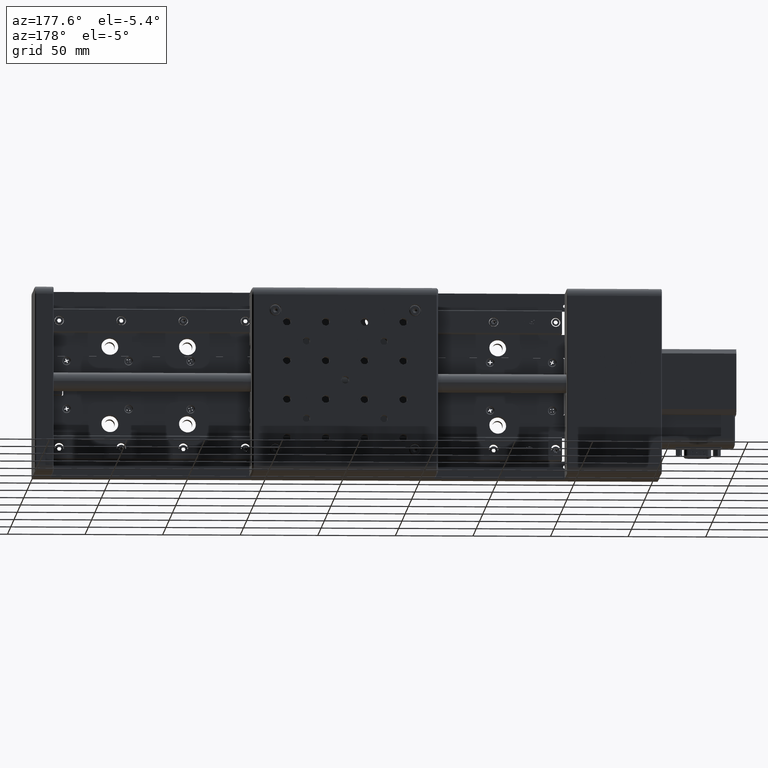
[diagram: clean part render]
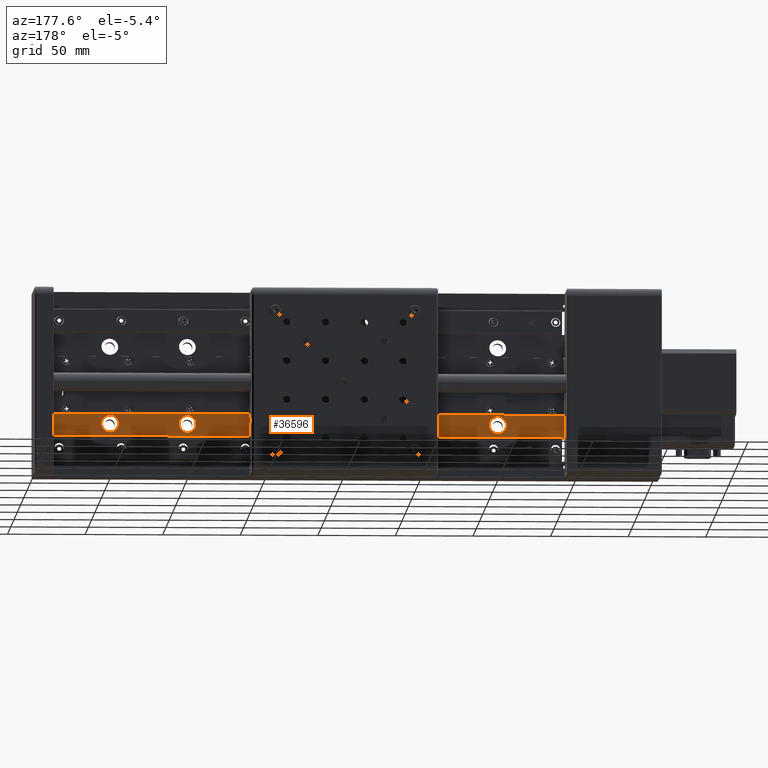
[diagram: same view with one face highlighted and labeled with its STEP entity id]
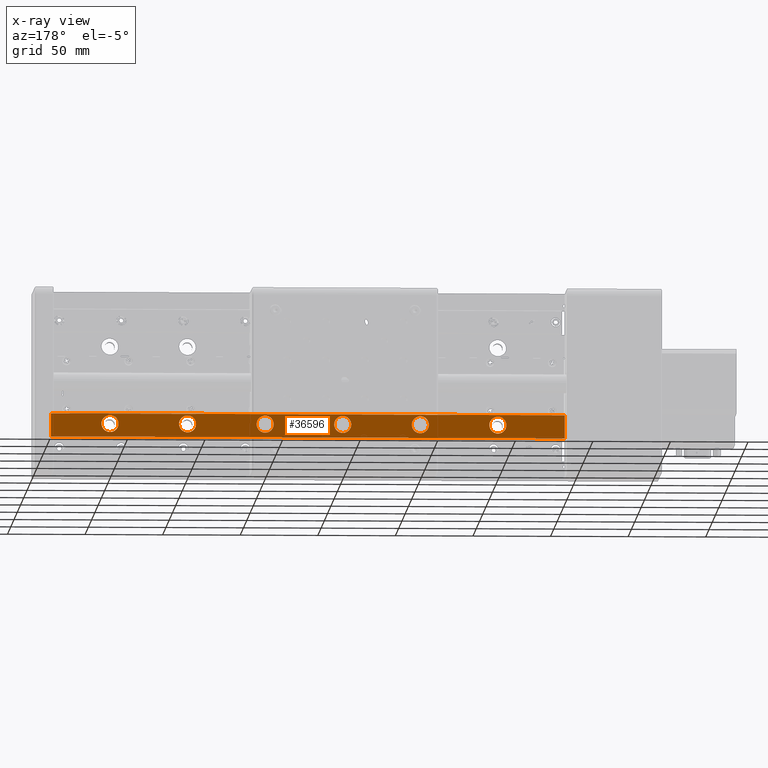
[diagram: x-ray of the same camera — body ghosted, the highlighted face saturated]
A machine part, auxiliary view. The second image highlights one B-rep face of the part: STEP entity #36596.
The next image is the same camera in x-ray: the body ghosted, the highlighted face saturated — about 0% of this face is hidden behind the body in this view.
In plain terms, the highlighted planar face has unit normal (-0, 1, -0).
Its self-contained STEP definition (entity closure, byte-faithful):
#104 = DIRECTION ( 'NONE',  ( -1.000000000000000000, 0.0000000000000000000, -1.009293658750141300E-014 ) ) ;
#224 = CARTESIAN_POINT ( 'NONE',  ( -45.90945278140745200, 14.00000000000170900, -259.4944050297544300 ) ) ;
#250 = CARTESIAN_POINT ( 'NONE',  ( 285.0905472185925200, 14.00000000000170900, -262.4944050297513600 ) ) ;
#325 = DIRECTION ( 'NONE',  ( -1.000000000000000000, 0.0000000000000000000, -1.009293658750141300E-014 ) ) ;
#441 = CARTESIAN_POINT ( 'NONE',  ( 197.0905472185922900, 14.00000000000171200, -232.4944050297521900 ) ) ;
#478 = DIRECTION ( 'NONE',  ( -5.605193857299268300E-045, 1.000000000000000000, -1.224646799147351500E-016 ) ) ;
#498 = CIRCLE ( 'NONE', #4271, 5.500000000000005300 ) ;
#518 = DIRECTION ( 'NONE',  ( 9.159679833264681700E-015, -1.224646799147351500E-016, -1.000000000000000000 ) ) ;
#609 = CARTESIAN_POINT ( 'NONE',  ( 252.5905472185923200, 14.00000000000171200, -232.4944050297516500 ) ) ;
#1304 = CARTESIAN_POINT ( 'NONE',  ( -2.909452781407723300, 14.00000000000171200, -232.4944050297540100 ) ) ;
#2017 = CARTESIAN_POINT ( 'NONE',  ( 102.5905472185922900, 14.00000000000171200, -232.4944050297530400 ) ) ;
#2184 = CARTESIAN_POINT ( 'NONE',  ( 241.5905472185922600, 14.00000000000171200, -232.4944050297517600 ) ) ;
#2326 = CIRCLE ( 'NONE', #34418, 5.500000000000005300 ) ;
#2432 = EDGE_LOOP ( 'NONE', ( #32907, #16328 ) ) ;
#2974 = AXIS2_PLACEMENT_3D ( 'NONE', #1304, #32135, #4456 ) ;
#3001 = ORIENTED_EDGE ( 'NONE', *, *, #8873, .F. ) ;
#3315 = VECTOR ( 'NONE', #30223, 1000.000000000000000 ) ;
#3556 = VERTEX_POINT ( 'NONE', #32783 ) ;
#3711 = ORIENTED_EDGE ( 'NONE', *, *, #29572, .F. ) ;
#3744 = DIRECTION ( 'NONE',  ( -1.000000000000000000, 0.0000000000000000000, -1.009293658750141300E-014 ) ) ;
#4171 = CARTESIAN_POINT ( 'NONE',  ( 285.0905472185921800, 14.00000000000171400, -225.9944050297513600 ) ) ;
#4271 = AXIS2_PLACEMENT_3D ( 'NONE', #4807, #31193, #14687 ) ;
#4456 = DIRECTION ( 'NONE',  ( -1.000000000000000000, 0.0000000000000000000, -1.009293658750141300E-014 ) ) ;
#4807 = CARTESIAN_POINT ( 'NONE',  ( 247.0905472185922600, 14.00000000000171200, -232.4944050297517000 ) ) ;
#6632 = CARTESIAN_POINT ( 'NONE',  ( 202.5905472185922900, 14.00000000000171200, -232.4944050297521300 ) ) ;
#7158 = AXIS2_PLACEMENT_3D ( 'NONE', #10702, #37295, #20858 ) ;
#7555 = EDGE_LOOP ( 'NONE', ( #17137, #41068 ) ) ;
#7582 = EDGE_CURVE ( 'NONE', #11464, #21837, #2326, .T. ) ;
#7644 = CIRCLE ( 'NONE', #15473, 5.500000000000005300 ) ;
#7789 = ORIENTED_EDGE ( 'NONE', *, *, #33727, .F. ) ;
#7881 = CIRCLE ( 'NONE', #24505, 5.500000000000005300 ) ;
#8258 = FACE_BOUND ( 'NONE', #2432, .T. ) ;
#8873 = EDGE_CURVE ( 'NONE', #40105, #11860, #7881, .T. ) ;
#9276 = CARTESIAN_POINT ( 'NONE',  ( 2.590547218592282000, 14.00000000000171200, -232.4944050297539800 ) ) ;
#9477 = CARTESIAN_POINT ( 'NONE',  ( 91.59054721859227800, 14.00000000000171200, -232.4944050297531500 ) ) ;
#9901 = DIRECTION ( 'NONE',  ( -5.605193857299268300E-045, 1.000000000000000000, -1.224646799147351500E-016 ) ) ;
#9948 = AXIS2_PLACEMENT_3D ( 'NONE', #30546, #33880, #40452 ) ;
#10196 = CIRCLE ( 'NONE', #9948, 5.500000000000005300 ) ;
#10250 = CARTESIAN_POINT ( 'NONE',  ( 52.59054721859227800, 14.00000000000171200, -232.4944050297534900 ) ) ;
#10284 = CIRCLE ( 'NONE', #25464, 5.500000000000005300 ) ;
#10392 = LINE ( 'NONE', #4171, #30088 ) ;
#10702 = CARTESIAN_POINT ( 'NONE',  ( 97.09054721859227800, 14.00000000000171200, -232.4944050297531000 ) ) ;
#10846 = CARTESIAN_POINT ( 'NONE',  ( 47.09054721859227000, 14.00000000000171200, -232.4944050297535500 ) ) ;
#11108 = VERTEX_POINT ( 'NONE', #2017 ) ;
#11464 = VERTEX_POINT ( 'NONE', #27227 ) ;
#11705 = VECTOR ( 'NONE', #518, 1000.000000000000000 ) ;
#11860 = VERTEX_POINT ( 'NONE', #9276 ) ;
#11927 = EDGE_CURVE ( 'NONE', #11860, #40105, #32582, .T. ) ;
#12152 = LINE ( 'NONE', #250, #3315 ) ;
#12214 = EDGE_CURVE ( 'NONE', #26525, #20164, #10284, .T. ) ;
#12591 = CARTESIAN_POINT ( 'NONE',  ( -8.409452781407727800, 14.00000000000171200, -232.4944050297540600 ) ) ;
#13468 = FACE_BOUND ( 'NONE', #7555, .T. ) ;
#13783 = ORIENTED_EDGE ( 'NONE', *, *, #13913, .F. ) ;
#13913 = EDGE_CURVE ( 'NONE', #23322, #34408, #10196, .T. ) ;
#13931 = CIRCLE ( 'NONE', #24118, 5.500000000000005300 ) ;
#14241 = EDGE_CURVE ( 'NONE', #3556, #35947, #24693, .T. ) ;
#14687 = DIRECTION ( 'NONE',  ( -1.000000000000000000, 0.0000000000000000000, -1.009293658750141300E-014 ) ) ;
#14964 = AXIS2_PLACEMENT_3D ( 'NONE', #25969, #26104, #42485 ) ;
#15129 = CARTESIAN_POINT ( 'NONE',  ( 97.09054721859227800, 14.00000000000171200, -232.4944050297531000 ) ) ;
#15284 = CARTESIAN_POINT ( 'NONE',  ( 285.0905472185921800, 14.00000000000171400, -225.9944050297513600 ) ) ;
#15473 = AXIS2_PLACEMENT_3D ( 'NONE', #10846, #17530, #40572 ) ;
#15792 = CARTESIAN_POINT ( 'NONE',  ( 152.5905472185922600, 14.00000000000171200, -232.4944050297525800 ) ) ;
#16328 = ORIENTED_EDGE ( 'NONE', *, *, #39812, .F. ) ;
#17137 = ORIENTED_EDGE ( 'NONE', *, *, #34730, .F. ) ;
#17530 = DIRECTION ( 'NONE',  ( -5.605193857299268300E-045, 1.000000000000000000, -1.224646799147351500E-016 ) ) ;
#18771 = VERTEX_POINT ( 'NONE', #10250 ) ;
#19367 = ORIENTED_EDGE ( 'NONE', *, *, #14241, .F. ) ;
#20164 = VERTEX_POINT ( 'NONE', #33433 ) ;
#20463 = CARTESIAN_POINT ( 'NONE',  ( 197.0905472185922900, 14.00000000000171200, -232.4944050297521900 ) ) ;
#20677 = DIRECTION ( 'NONE',  ( -1.000000000000000000, 0.0000000000000000000, -1.009293658750141300E-014 ) ) ;
#20724 = VECTOR ( 'NONE', #21263, 1000.000000000000000 ) ;
#20858 = DIRECTION ( 'NONE',  ( -1.000000000000000000, 0.0000000000000000000, -1.009293658750141300E-014 ) ) ;
#21263 = DIRECTION ( 'NONE',  ( 1.000000000000000000, 1.102089411020048300E-030, 8.999242979995150200E-015 ) ) ;
#21601 = CARTESIAN_POINT ( 'NONE',  ( 41.59054721859227000, 14.00000000000171200, -232.4944050297536100 ) ) ;
#21837 = VERTEX_POINT ( 'NONE', #6632 ) ;
#22157 = CIRCLE ( 'NONE', #27262, 5.500000000000005300 ) ;
#22804 = FACE_OUTER_BOUND ( 'NONE', #38704, .T. ) ;
#23240 = CIRCLE ( 'NONE', #40991, 5.500000000000005300 ) ;
#23322 = VERTEX_POINT ( 'NONE', #609 ) ;
#23613 = DIRECTION ( 'NONE',  ( -5.605193857299268300E-045, 1.000000000000000000, -1.224646799147351500E-016 ) ) ;
#23828 = ORIENTED_EDGE ( 'NONE', *, *, #37636, .F. ) ;
#23874 = EDGE_CURVE ( 'NONE', #24446, #3556, #10392, .T. ) ;
#23894 = DIRECTION ( 'NONE',  ( -1.000000000000000000, -1.121737258902228800E-030, -9.159679833264681700E-015 ) ) ;
#24118 = AXIS2_PLACEMENT_3D ( 'NONE', #37399, #40538, #20677 ) ;
#24446 = VERTEX_POINT ( 'NONE', #15284 ) ;
#24505 = AXIS2_PLACEMENT_3D ( 'NONE', #28009, #34519, #24862 ) ;
#24693 = LINE ( 'NONE', #224, #11705 ) ;
#24703 = ORIENTED_EDGE ( 'NONE', *, *, #25963, .F. ) ;
#24862 = DIRECTION ( 'NONE',  ( -1.000000000000000000, 0.0000000000000000000, -1.009293658750141300E-014 ) ) ;
#24883 = FACE_BOUND ( 'NONE', #36436, .T. ) ;
#25235 = ORIENTED_EDGE ( 'NONE', *, *, #23874, .F. ) ;
#25375 = ORIENTED_EDGE ( 'NONE', *, *, #11927, .F. ) ;
#25464 = AXIS2_PLACEMENT_3D ( 'NONE', #33571, #26631, #104 ) ;
#25911 = FACE_BOUND ( 'NONE', #39884, .T. ) ;
#25963 = EDGE_CURVE ( 'NONE', #20164, #26525, #13931, .T. ) ;
#25969 = CARTESIAN_POINT ( 'NONE',  ( 297.0905472185915000, 14.00000000000172300, -147.4944050297512500 ) ) ;
#26104 = DIRECTION ( 'NONE',  ( -1.488879618345118100E-044, 1.000000000000000000, -1.224646799147351500E-016 ) ) ;
#26275 = AXIS2_PLACEMENT_3D ( 'NONE', #15129, #34802, #41375 ) ;
#26284 = CIRCLE ( 'NONE', #7158, 5.500000000000005300 ) ;
#26402 = PLANE ( 'NONE',  #14964 ) ;
#26415 = CIRCLE ( 'NONE', #26275, 5.500000000000005300 ) ;
#26525 = VERTEX_POINT ( 'NONE', #15792 ) ;
#26573 = DIRECTION ( 'NONE',  ( -1.000000000000000000, 0.0000000000000000000, -1.009293658750141300E-014 ) ) ;
#26631 = DIRECTION ( 'NONE',  ( -5.605193857299268300E-045, 1.000000000000000000, -1.224646799147351500E-016 ) ) ;
#26930 = FACE_BOUND ( 'NONE', #34957, .T. ) ;
#27227 = CARTESIAN_POINT ( 'NONE',  ( 191.5905472185922900, 14.00000000000171200, -232.4944050297522400 ) ) ;
#27262 = AXIS2_PLACEMENT_3D ( 'NONE', #29728, #9901, #26573 ) ;
#27714 = CARTESIAN_POINT ( 'NONE',  ( -60.90945278140763700, 14.00000000000171200, -240.9944050297544900 ) ) ;
#27818 = EDGE_LOOP ( 'NONE', ( #24703, #32448 ) ) ;
#28009 = CARTESIAN_POINT ( 'NONE',  ( -2.909452781407723300, 14.00000000000171200, -232.4944050297540100 ) ) ;
#28958 = LINE ( 'NONE', #27714, #20724 ) ;
#29572 = EDGE_CURVE ( 'NONE', #35611, #24446, #12152, .T. ) ;
#29728 = CARTESIAN_POINT ( 'NONE',  ( 47.09054721859227000, 14.00000000000171200, -232.4944050297535500 ) ) ;
#30030 = FACE_BOUND ( 'NONE', #27818, .T. ) ;
#30088 = VECTOR ( 'NONE', #23894, 1000.000000000000000 ) ;
#30223 = DIRECTION ( 'NONE',  ( -9.159679833264681700E-015, 1.224646799147351500E-016, 1.000000000000000000 ) ) ;
#30546 = CARTESIAN_POINT ( 'NONE',  ( 247.0905472185922600, 14.00000000000171200, -232.4944050297517000 ) ) ;
#31193 = DIRECTION ( 'NONE',  ( -5.605193857299268300E-045, 1.000000000000000000, -1.224646799147351500E-016 ) ) ;
#31261 = ORIENTED_EDGE ( 'NONE', *, *, #33806, .F. ) ;
#31839 = CARTESIAN_POINT ( 'NONE',  ( 285.0905472185923500, 14.00000000000171200, -240.9944050297513900 ) ) ;
#32135 = DIRECTION ( 'NONE',  ( -5.605193857299268300E-045, 1.000000000000000000, -1.224646799147351500E-016 ) ) ;
#32158 = VERTEX_POINT ( 'NONE', #9477 ) ;
#32448 = ORIENTED_EDGE ( 'NONE', *, *, #12214, .F. ) ;
#32551 = EDGE_CURVE ( 'NONE', #34408, #23322, #498, .T. ) ;
#32582 = CIRCLE ( 'NONE', #2974, 5.500000000000005300 ) ;
#32723 = ORIENTED_EDGE ( 'NONE', *, *, #32551, .F. ) ;
#32783 = CARTESIAN_POINT ( 'NONE',  ( -45.90945278140775800, 14.00000000000171400, -225.9944050297544000 ) ) ;
#32907 = ORIENTED_EDGE ( 'NONE', *, *, #7582, .F. ) ;
#33433 = CARTESIAN_POINT ( 'NONE',  ( 141.5905472185922600, 14.00000000000171200, -232.4944050297527000 ) ) ;
#33571 = CARTESIAN_POINT ( 'NONE',  ( 147.0905472185922600, 14.00000000000171200, -232.4944050297526400 ) ) ;
#33727 = EDGE_CURVE ( 'NONE', #35947, #35611, #28958, .T. ) ;
#33806 = EDGE_CURVE ( 'NONE', #11108, #32158, #26415, .T. ) ;
#33880 = DIRECTION ( 'NONE',  ( -5.605193857299268300E-045, 1.000000000000000000, -1.224646799147351500E-016 ) ) ;
#34264 = CARTESIAN_POINT ( 'NONE',  ( -45.90945278140762300, 14.00000000000171200, -240.9944050297543800 ) ) ;
#34408 = VERTEX_POINT ( 'NONE', #2184 ) ;
#34418 = AXIS2_PLACEMENT_3D ( 'NONE', #20463, #478, #325 ) ;
#34519 = DIRECTION ( 'NONE',  ( -5.605193857299268300E-045, 1.000000000000000000, -1.224646799147351500E-016 ) ) ;
#34730 = EDGE_CURVE ( 'NONE', #39994, #18771, #7644, .T. ) ;
#34802 = DIRECTION ( 'NONE',  ( -5.605193857299268300E-045, 1.000000000000000000, -1.224646799147351500E-016 ) ) ;
#34957 = EDGE_LOOP ( 'NONE', ( #3001, #25375 ) ) ;
#35611 = VERTEX_POINT ( 'NONE', #31839 ) ;
#35947 = VERTEX_POINT ( 'NONE', #34264 ) ;
#36436 = EDGE_LOOP ( 'NONE', ( #32723, #13783 ) ) ;
#36596 = ADVANCED_FACE ( 'NONE', ( #22804, #26930, #13468, #25911, #24883, #8258, #30030 ), #26402, .T. ) ;
#37295 = DIRECTION ( 'NONE',  ( -5.605193857299268300E-045, 1.000000000000000000, -1.224646799147351500E-016 ) ) ;
#37399 = CARTESIAN_POINT ( 'NONE',  ( 147.0905472185922600, 14.00000000000171200, -232.4944050297526400 ) ) ;
#37636 = EDGE_CURVE ( 'NONE', #32158, #11108, #26284, .T. ) ;
#38704 = EDGE_LOOP ( 'NONE', ( #19367, #25235, #3711, #7789 ) ) ;
#39812 = EDGE_CURVE ( 'NONE', #21837, #11464, #23240, .T. ) ;
#39884 = EDGE_LOOP ( 'NONE', ( #23828, #31261 ) ) ;
#39994 = VERTEX_POINT ( 'NONE', #21601 ) ;
#40105 = VERTEX_POINT ( 'NONE', #12591 ) ;
#40452 = DIRECTION ( 'NONE',  ( -1.000000000000000000, 0.0000000000000000000, -1.009293658750141300E-014 ) ) ;
#40538 = DIRECTION ( 'NONE',  ( -5.605193857299268300E-045, 1.000000000000000000, -1.224646799147351500E-016 ) ) ;
#40572 = DIRECTION ( 'NONE',  ( -1.000000000000000000, 0.0000000000000000000, -1.009293658750141300E-014 ) ) ;
#40703 = EDGE_CURVE ( 'NONE', #18771, #39994, #22157, .T. ) ;
#40991 = AXIS2_PLACEMENT_3D ( 'NONE', #441, #23613, #3744 ) ;
#41068 = ORIENTED_EDGE ( 'NONE', *, *, #40703, .F. ) ;
#41375 = DIRECTION ( 'NONE',  ( -1.000000000000000000, 0.0000000000000000000, -1.009293658750141300E-014 ) ) ;
#42485 = DIRECTION ( 'NONE',  ( -1.000000000000000000, -1.121737258902228800E-030, -9.159679833264681700E-015 ) ) ;